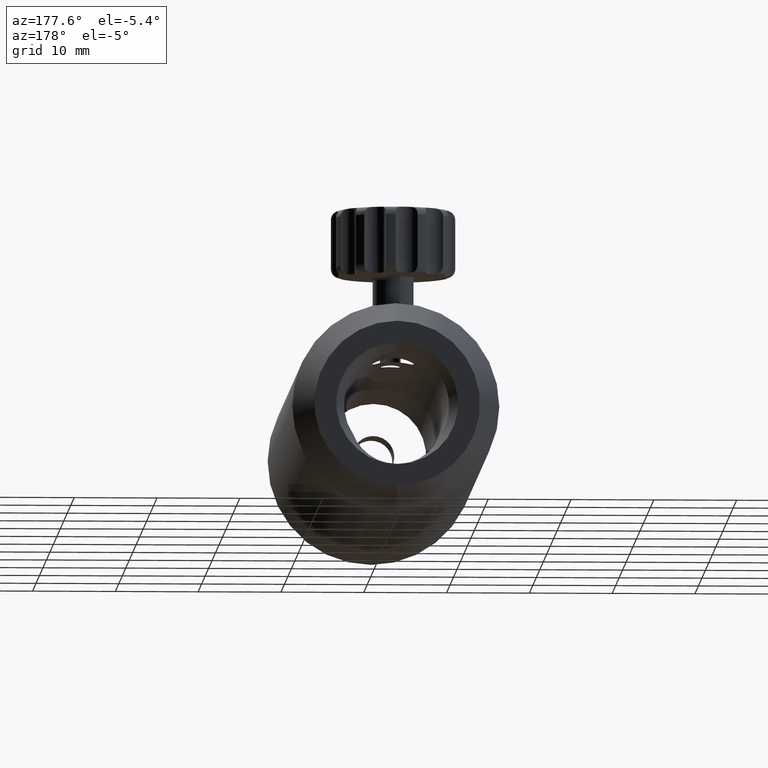
[diagram: clean part render]
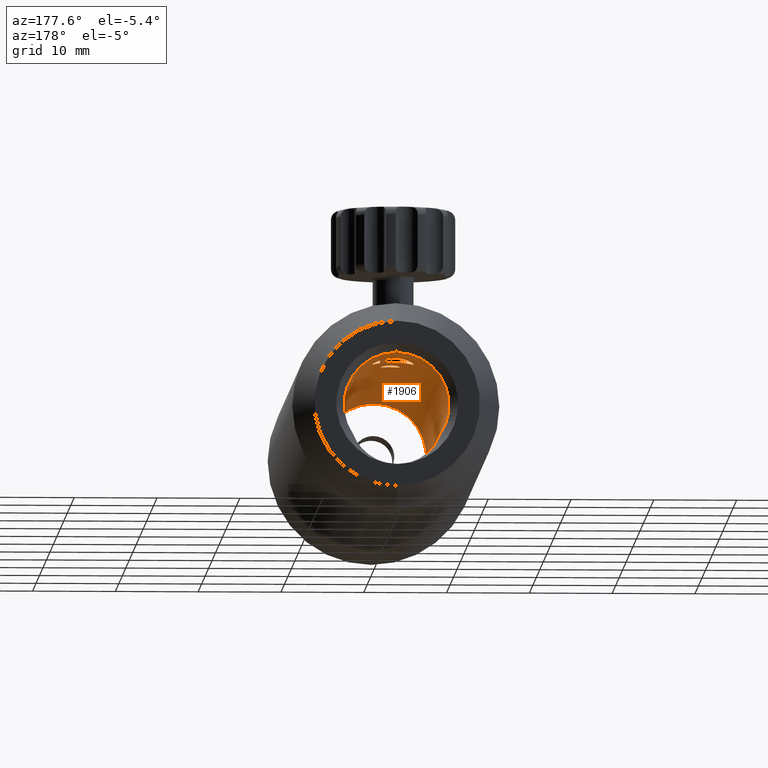
[diagram: same view with one face highlighted and labeled with its STEP entity id]
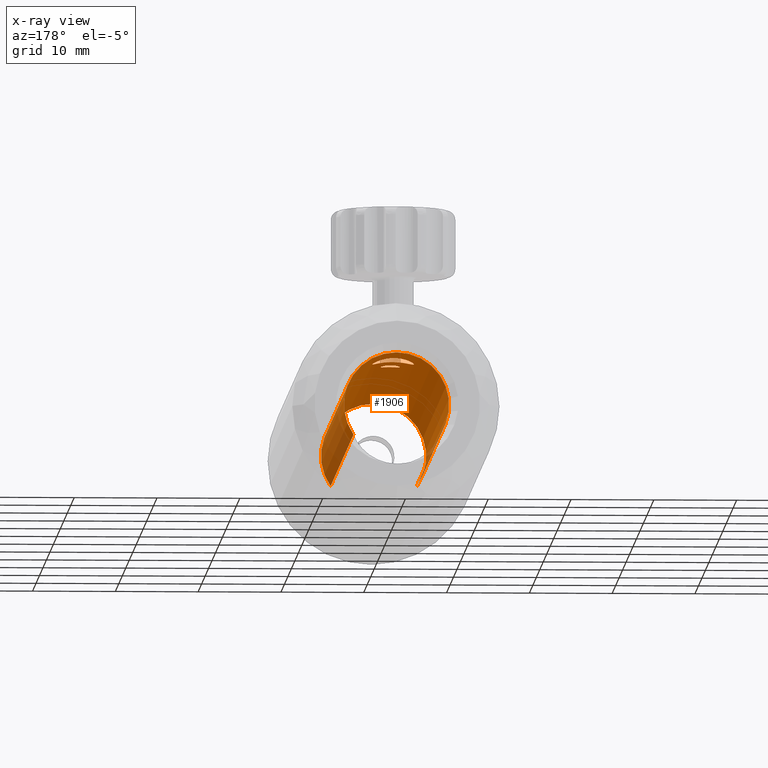
[diagram: x-ray of the same camera — body ghosted, the highlighted face saturated]
A machine part, auxiliary view. The second image highlights one B-rep face of the part: STEP entity #1906.
The next image is the same camera in x-ray: the body ghosted, the highlighted face saturated — about 19% of this face is hidden behind the body in this view.
In plain terms, the highlighted cylindrical surface (partial cylindrical patch) has radius 6.35 mm, axis along (0, -1, -0).
Its self-contained STEP definition (entity closure, byte-faithful):
#41 = CARTESIAN_POINT ( 'NONE',  ( -5.198049867510712300, -1.728264329007514100, -3.647297297297291700 ) ) ;
#81 = CARTESIAN_POINT ( 'NONE',  ( 0.1510113831027402900, 45.32182328895520800, 6.349984132182564500 ) ) ;
#97 = CARTESIAN_POINT ( 'NONE',  ( -1.149999908789935100, 46.47127765014592900, 6.244998015194491700 ) ) ;
#112 = CARTESIAN_POINT ( 'NONE',  ( -2.165739435425883700, 55.73107861359333300, 5.970029687664776900 ) ) ;
#125 = DIRECTION ( 'NONE',  ( 1.502285461903961200E-018, -1.000000000000000000, -4.971860657915503100E-018 ) ) ;
#127 = CARTESIAN_POINT ( 'NONE',  ( 2.370129959970264500, 55.28364904728293500, 5.891481081059257700 ) ) ;
#193 = EDGE_CURVE ( 'NONE', #2875, #2890, #1790, .T. ) ;
#200 = CARTESIAN_POINT ( 'NONE',  ( -0.6572119504573507000, 52.05407384349165800, 6.317965192850091500 ) ) ;
#209 = FACE_OUTER_BOUND ( 'NONE', #1007, .T. ) ;
#213 = CARTESIAN_POINT ( 'NONE',  ( -1.654242992986352000, 52.59021364012831900, 6.131916109646367000 ) ) ;
#227 = DIRECTION ( 'NONE',  ( -9.992007221626422700E-016, 0.0000000000000000000, -1.000000000000000000 ) ) ;
#284 = CARTESIAN_POINT ( 'NONE',  ( -2.499997752677083400, 54.47508777623104200, 5.837166370475449300 ) ) ;
#325 = CARTESIAN_POINT ( 'NONE',  ( 1.004358416760792600, 45.89167152456907700, 6.270342740579433600 ) ) ;
#344 = EDGE_CURVE ( 'NONE', #3453, #3025, #3136, .T. ) ;
#364 = CARTESIAN_POINT ( 'NONE',  ( -0.3005370403878017100, 45.35148986445078400, 6.344423632383190200 ) ) ;
#373 = CIRCLE ( 'NONE', #3633, 6.349999999999991700 ) ;
#382 = CARTESIAN_POINT ( 'NONE',  ( 0.3025598155492886200, 45.35219018268771400, 6.344302884267999200 ) ) ;
#385 = CARTESIAN_POINT ( 'NONE',  ( 2.499999999999946700, 54.47173567099245900, 5.837165407969830100 ) ) ;
#425 = CARTESIAN_POINT ( 'NONE',  ( 0.6547900516583230500, 56.89009666806531100, 6.318233128599670700 ) ) ;
#454 = CARTESIAN_POINT ( 'NONE',  ( -2.244044347562149400, 55.58559831054443400, 5.940647282432816900 ) ) ;
#499 = CARTESIAN_POINT ( 'NONE',  ( -0.1674585183177325600, 51.97191312956984900, 6.349930134451908800 ) ) ;
#505 = CARTESIAN_POINT ( 'NONE',  ( -0.1528058789328060300, 47.62161977588503000, 6.349979011128140400 ) ) ;
#507 = CARTESIAN_POINT ( 'NONE',  ( 0.3269052817027869900, 51.97138503305340900, 6.350138046366005500 ) ) ;
#587 = CARTESIAN_POINT ( 'NONE',  ( 0.0000000000000000000, 64.47173567099247300, 0.0000000000000000000 ) ) ;
#656 = CARTESIAN_POINT ( 'NONE',  ( 1.149999999999984400, 46.31944945576085400, 6.244997998398420500 ) ) ;
#675 = CARTESIAN_POINT ( 'NONE',  ( -0.7059460571119214900, 45.55138902037094800, 6.311559679995632200 ) ) ;
#693 = CARTESIAN_POINT ( 'NONE',  ( 2.483446565210908100, 54.80248579836594300, 5.844331902840751900 ) ) ;
#735 = CARTESIAN_POINT ( 'NONE',  ( -0.3294400814280854000, 56.95537486863538100, 6.343506928962349400 ) ) ;
#749 = CARTESIAN_POINT ( 'NONE',  ( -0.8084815697118772300, 56.84316132502763000, 6.300211952570832900 ) ) ;
#788 = CARTESIAN_POINT ( 'NONE',  ( -2.369392307714980100, 55.28561840563941800, 5.891774372822089500 ) ) ;
#791 = AXIS2_PLACEMENT_3D ( 'NONE', #3310, #1919, #2207 ) ;
#793 = CARTESIAN_POINT ( 'NONE',  ( -2.371452656498692400, 53.66365428116020600, 5.890946929205545000 ) ) ;
#804 = CARTESIAN_POINT ( 'NONE',  ( 2.242884453182267400, 53.35524090051961800, 5.941095508936077100 ) ) ;
#834 = CARTESIAN_POINT ( 'NONE',  ( 5.198049867510490300, 31.37173567099244700, -3.647297297297430200 ) ) ;
#844 = CARTESIAN_POINT ( 'NONE',  ( 0.1510564449334315900, 47.62185090076948800, 6.350020868378971200 ) ) ;
#905 = CARTESIAN_POINT ( 'NONE',  ( 5.198049867510490300, 64.47173567099247300, -3.647297297297430200 ) ) ;
#933 = CARTESIAN_POINT ( 'NONE',  ( 1.149999999999984400, 46.47173567099245200, 6.244997998398421400 ) ) ;
#971 = CARTESIAN_POINT ( 'NONE',  ( -0.9199979220715451800, 45.76533520649222500, 6.283927852313589700 ) ) ;
#986 = VECTOR ( 'NONE', #1108, 1000.000000000000000 ) ;
#1007 = EDGE_LOOP ( 'NONE', ( #1756, #2010, #2718, #2220, #1827 ) ) ;
#1038 = CARTESIAN_POINT ( 'NONE',  ( -1.113556473459903500, 56.71612736176201300, 6.253503424185175200 ) ) ;
#1065 = CARTESIAN_POINT ( 'NONE',  ( -1.987609498650947800, 52.94673890292909800, 6.031665373164329900 ) ) ;
#1078 = CARTESIAN_POINT ( 'NONE',  ( -1.261026477226992800, 52.30702362562430400, 6.225049564060847200 ) ) ;
#1084 = AXIS2_PLACEMENT_3D ( 'NONE', #587, #3285, #1625 ) ;
#1093 = CARTESIAN_POINT ( 'NONE',  ( 0.0000000000000000000, -1.728264329007514100, 0.0000000000000000000 ) ) ;
#1098 = CARTESIAN_POINT ( 'NONE',  ( 1.149999999999984400, 46.47173567099245200, 6.244997998398421400 ) ) ;
#1100 = B_SPLINE_CURVE_WITH_KNOTS ( 'NONE', 3,
 ( #933, #656, #3135, #325, #1223, #3440, #1780, #382, #81, #2051, #364, #2334, #675, #971, #1238, #1516, #3166, #97 ),
 .UNSPECIFIED., .F., .F.,
 ( 4, 2, 2, 2, 2, 2, 2, 2, 4 ),
 ( 0.0000000000000000000, 0.0004502999185177035000, 0.0009005998370354070000, 0.001350899755553110800, 0.001801199674070814400, 0.002251499592588517900, 0.002701799511106221500, 0.003152099429623924800, 0.003602399348141628000 ),
 .UNSPECIFIED. ) ;
#1108 = DIRECTION ( 'NONE',  ( -1.502285461903961200E-018, 1.000000000000000000, 4.971860657915503100E-018 ) ) ;
#1155 = CARTESIAN_POINT ( 'NONE',  ( -5.198049867510712300, 64.47173567099247300, -3.647297297297291700 ) ) ;
#1218 = EDGE_CURVE ( 'NONE', #2938, #3025, #3303, .T. ) ;
#1223 = CARTESIAN_POINT ( 'NONE',  ( 0.9189334159104122200, 45.76429904790309400, 6.284063441641041700 ) ) ;
#1233 = FACE_BOUND ( 'NONE', #3547, .T. ) ;
#1238 = CARTESIAN_POINT ( 'NONE',  ( -1.004466206490030000, 45.89189900700791500, 6.270324796236828000 ) ) ;
#1250 = EDGE_LOOP ( 'NONE', ( #3316, #1384 ) ) ;
#1254 = CARTESIAN_POINT ( 'NONE',  ( 0.8140545381631920700, 56.84107788072399400, 6.299434701280211400 ) ) ;
#1291 = EDGE_CURVE ( 'NONE', #1517, #1884, #2104, .T. ) ;
#1333 = CARTESIAN_POINT ( 'NONE',  ( 1.651760224387802200, 52.58812832776277400, 6.132573316429510900 ) ) ;
#1344 = CARTESIAN_POINT ( 'NONE',  ( -1.529473421994204100, 52.48757915825392200, 6.164587650662047800 ) ) ;
#1373 = CARTESIAN_POINT ( 'NONE',  ( 0.7067191327235603500, 47.39120574181384200, 6.311453055442164000 ) ) ;
#1384 = ORIENTED_EDGE ( 'NONE', *, *, #1291, .F. ) ;
#1388 = ORIENTED_EDGE ( 'NONE', *, *, #193, .T. ) ;
#1394 = CARTESIAN_POINT ( 'NONE',  ( 0.9184271179517848900, 47.17980965914947700, 6.284137429482148800 ) ) ;
#1455 = CARTESIAN_POINT ( 'NONE',  ( -1.149999908789935100, 46.47127765014592900, 6.244998015194491700 ) ) ;
#1502 = CIRCLE ( 'NONE', #1084, 6.349999999999991700 ) ;
#1516 = CARTESIAN_POINT ( 'NONE',  ( -1.119871043786738500, 46.16998782564940000, 6.250745096032224200 ) ) ;
#1517 = VERTEX_POINT ( 'NONE', #1455 ) ;
#1528 = CARTESIAN_POINT ( 'NONE',  ( -1.256784600331917200, 56.63893691332138000, 6.225916663104407600 ) ) ;
#1541 = CARTESIAN_POINT ( 'NONE',  ( 1.986308574825984600, 55.99851352368347800, 6.032102730984076900 ) ) ;
#1566 = CARTESIAN_POINT ( 'NONE',  ( -1.653242219314702500, 56.35401917356335800, 6.132168636888772000 ) ) ;
#1569 = AXIS2_PLACEMENT_3D ( 'NONE', #2763, #1909, #227 ) ;
#1602 = CARTESIAN_POINT ( 'NONE',  ( 2.499999999999946700, 54.47173567099245900, 5.837165407969830100 ) ) ;
#1607 = CARTESIAN_POINT ( 'NONE',  ( -2.499997752677083400, 54.47508777623104200, 5.837166370475449300 ) ) ;
#1625 = DIRECTION ( 'NONE',  ( -9.992007221626422700E-016, 0.0000000000000000000, -1.000000000000000000 ) ) ;
#1638 = CARTESIAN_POINT ( 'NONE',  ( -2.483961750665627700, 54.14424684330835200, 5.844113701012537900 ) ) ;
#1654 = CARTESIAN_POINT ( 'NONE',  ( 1.149999999999984400, 46.47173567099245200, 6.244997998398421400 ) ) ;
#1659 = EDGE_CURVE ( 'NONE', #2890, #2875, #2480, .T. ) ;
#1673 = CARTESIAN_POINT ( 'NONE',  ( 1.004211816076737700, 47.05181489765948300, 6.270364000829802700 ) ) ;
#1680 = CARTESIAN_POINT ( 'NONE',  ( -1.150059753738826400, 46.62153650034486700, 6.244986994905036500 ) ) ;
#1686 = CARTESIAN_POINT ( 'NONE',  ( -5.198049867510712300, 31.37173567099244700, -3.647297297297291700 ) ) ;
#1756 = ORIENTED_EDGE ( 'NONE', *, *, #2759, .T. ) ;
#1780 = CARTESIAN_POINT ( 'NONE',  ( 0.5791741834360694100, 45.46700595230694100, 6.325051683153080100 ) ) ;
#1790 = B_SPLINE_CURVE_WITH_KNOTS ( 'NONE', 3,
 ( #2732, #2719, #1638, #2440, #793, #3284, #2992, #1065, #2979, #213, #1344, #1078, #3302, #2464, #200, #2453, #499, #507, #2998, #2754, #1902, #3570, #1333, #1865, #3579, #3024, #804, #2178, #3262, #1602 ),
 .UNSPECIFIED., .F., .F.,
 ( 4, 2, 2, 2, 2, 2, 2, 2, 2, 2, 2, 2, 2, 2, 4 ),
 ( 0.007893180680537455900, 0.008386504473071048800, 0.008879828265604640000, 0.009373152058138233000, 0.009866475850671824200, 0.01035979964320541700, 0.01085312343573901000, 0.01134644722827260100, 0.01183977102080619400, 0.01282641860587337800, 0.01331974239840697100, 0.01381306619094056400, 0.01430638998347415500, 0.01479971377600774800, 0.01578636136107491500 ),
 .UNSPECIFIED. ) ;
#1804 = CARTESIAN_POINT ( 'NONE',  ( -1.984618731513558600, 56.00067662464731200, 6.032658639794162200 ) ) ;
#1813 = CARTESIAN_POINT ( 'NONE',  ( 1.264361089591121300, 56.65285011705120900, 6.230260060568698900 ) ) ;
#1827 = ORIENTED_EDGE ( 'NONE', *, *, #3266, .F. ) ;
#1865 = CARTESIAN_POINT ( 'NONE',  ( 1.881222169726200800, 52.81725943650946700, 6.066116588756230500 ) ) ;
#1884 = VERTEX_POINT ( 'NONE', #1654 ) ;
#1897 = CARTESIAN_POINT ( 'NONE',  ( -2.483275062656582000, 54.80464652090318400, 5.844408703338613600 ) ) ;
#1902 = CARTESIAN_POINT ( 'NONE',  ( 1.256596103985782300, 52.30437491040130000, 6.225967073754529400 ) ) ;
#1906 = ADVANCED_FACE ( 'NONE', ( #2523, #1233, #209 ), #3226, .F. ) ;
#1909 = DIRECTION ( 'NONE',  ( 1.502285461903961200E-018, -1.000000000000000000, -4.971860657915503100E-018 ) ) ;
#1919 = DIRECTION ( 'NONE',  ( 1.502285461903961200E-018, -1.000000000000000000, -4.971860657915503100E-018 ) ) ;
#1920 = CARTESIAN_POINT ( 'NONE',  ( -0.5811329321484782800, 47.47552276683281700, 6.324896745840590900 ) ) ;
#2010 = ORIENTED_EDGE ( 'NONE', *, *, #2691, .T. ) ;
#2051 = CARTESIAN_POINT ( 'NONE',  ( -0.1496739444161646600, 45.32164844188675100, 6.350015797394512200 ) ) ;
#2083 = DIRECTION ( 'NONE',  ( -9.992007221626422700E-016, 0.0000000000000000000, -1.000000000000000000 ) ) ;
#2104 = B_SPLINE_CURVE_WITH_KNOTS ( 'NONE', 3,
 ( #2776, #1680, #2768, #3590, #3311, #2477, #1920, #2185, #505, #844, #2459, #3049, #1373, #1394, #1673, #3623, #2225, #1098 ),
 .UNSPECIFIED., .F., .F.,
 ( 4, 2, 2, 2, 2, 2, 2, 2, 4 ),
 ( 0.003602399348141628000, 0.004052699266659333400, 0.004502999185177038400, 0.004953299103694743300, 0.005403599022212448300, 0.005853898940730153200, 0.006304198859247858200, 0.006754498777765563200, 0.007204798696283268100 ),
 .UNSPECIFIED. ) ;
#2116 = CARTESIAN_POINT ( 'NONE',  ( -1.882165318667554900, 56.12511243778827500, 6.065818637263395100 ) ) ;
#2137 = LINE ( 'NONE', #834, #2612 ) ;
#2162 = CARTESIAN_POINT ( 'NONE',  ( -2.499777366650979700, 54.63945152103099900, 5.837260759522291800 ) ) ;
#2178 = CARTESIAN_POINT ( 'NONE',  ( 2.433414811681879000, 53.81078383797714100, 5.866820128553010600 ) ) ;
#2185 = CARTESIAN_POINT ( 'NONE',  ( -0.3022794824821744000, 47.59152633583718700, 6.344340899166966500 ) ) ;
#2195 = CARTESIAN_POINT ( 'NONE',  ( 5.198049867510490300, -1.728264329007541900, -3.647297297297430200 ) ) ;
#2207 = DIRECTION ( 'NONE',  ( -9.992007221626422700E-016, 0.0000000000000000000, -1.000000000000000000 ) ) ;
#2220 = ORIENTED_EDGE ( 'NONE', *, *, #1218, .F. ) ;
#2225 = CARTESIAN_POINT ( 'NONE',  ( 1.149999999999984600, 46.62402188622405700, 6.244997998398421400 ) ) ;
#2334 = CARTESIAN_POINT ( 'NONE',  ( -0.5793916107516863300, 45.46695781439438400, 6.325056450434094500 ) ) ;
#2345 = CARTESIAN_POINT ( 'NONE',  ( 1.882212791084718000, 56.12499848162278200, 6.065794436200895300 ) ) ;
#2376 = CARTESIAN_POINT ( 'NONE',  ( 2.167444471297904400, 55.72818178194795300, 5.969411158180757400 ) ) ;
#2388 = CARTESIAN_POINT ( 'NONE',  ( 0.3313015468426845900, 56.95517264602797500, 6.343426452962526200 ) ) ;
#2426 = CARTESIAN_POINT ( 'NONE',  ( -2.417570060403433800, 55.12964119144449200, 5.871892636238599500 ) ) ;
#2440 = CARTESIAN_POINT ( 'NONE',  ( -2.419233050019943900, 53.82010206173111300, 5.871204508346093800 ) ) ;
#2449 = ORIENTED_EDGE ( 'NONE', *, *, #1659, .T. ) ;
#2453 = CARTESIAN_POINT ( 'NONE',  ( -0.3350173562672737500, 51.98883824440025600, 6.343214886545224500 ) ) ;
#2459 = CARTESIAN_POINT ( 'NONE',  ( 0.3009579352662133400, 47.59181207493569600, 6.344395102386847000 ) ) ;
#2464 = CARTESIAN_POINT ( 'NONE',  ( -0.8132572461816591800, 52.10204218329212000, 6.299562945850819800 ) ) ;
#2477 = CARTESIAN_POINT ( 'NONE',  ( -0.7080124032558784400, 47.39026348122467900, 6.311309099113021400 ) ) ;
#2480 = B_SPLINE_CURVE_WITH_KNOTS ( 'NONE', 3,
 ( #385, #2904, #693, #3169, #127, #3464, #2376, #1541, #2345, #2687, #1813, #1254, #425, #2388, #3184, #2947, #735, #3228, #749, #1038, #1528, #3476, #1566, #2116, #1804, #112, #454, #788, #2426, #1897, #2162, #1607 ),
 .UNSPECIFIED., .F., .F.,
 ( 4, 2, 2, 2, 2, 2, 2, 2, 2, 2, 2, 2, 2, 2, 2, 4 ),
 ( 0.0000000000000000000, 0.0004933237925335855700, 0.0009866475850671711400, 0.001479971377600756700, 0.001973295170134342300, 0.002959942755201528600, 0.003453266547735121600, 0.003946590340268714900, 0.004439914132802307900, 0.004933237925335900000, 0.005426561717869492900, 0.005919885510403085000, 0.006413209302936677900, 0.006906533095470270000, 0.007399856888003862900, 0.007893180680537455900 ),
 .UNSPECIFIED. ) ;
#2485 = DIRECTION ( 'NONE',  ( 1.502285461903961200E-018, -1.000000000000000000, -4.971860657915503100E-018 ) ) ;
#2523 = FACE_BOUND ( 'NONE', #1250, .T. ) ;
#2536 = CARTESIAN_POINT ( 'NONE',  ( 2.499999999999946700, 54.47173567099245900, 5.837165407969830100 ) ) ;
#2607 = EDGE_CURVE ( 'NONE', #1884, #1517, #1100, .T. ) ;
#2612 = VECTOR ( 'NONE', #2485, 1000.000000000000000 ) ;
#2687 = CARTESIAN_POINT ( 'NONE',  ( 1.540228304383115100, 56.46715753569228700, 6.164944874291403000 ) ) ;
#2691 = EDGE_CURVE ( 'NONE', #2851, #3453, #373, .T. ) ;
#2718 = ORIENTED_EDGE ( 'NONE', *, *, #344, .T. ) ;
#2719 = CARTESIAN_POINT ( 'NONE',  ( -2.500218138703186100, 54.31072403143110000, 5.837071981428608500 ) ) ;
#2732 = CARTESIAN_POINT ( 'NONE',  ( -2.499997752677083400, 54.47508777623104200, 5.837166370475449300 ) ) ;
#2754 = CARTESIAN_POINT ( 'NONE',  ( 1.110814755856100300, 52.22613332870354700, 6.253945325898986800 ) ) ;
#2759 = EDGE_CURVE ( 'NONE', #3051, #2851, #2137, .T. ) ;
#2763 = CARTESIAN_POINT ( 'NONE',  ( 0.0000000000000000000, 64.47173567099247300, 0.0000000000000000000 ) ) ;
#2768 = CARTESIAN_POINT ( 'NONE',  ( -1.119864790154556200, 46.77316509068033700, 6.250742618844149100 ) ) ;
#2776 = CARTESIAN_POINT ( 'NONE',  ( -1.149999908789935100, 46.47127765014592900, 6.244998015194491700 ) ) ;
#2851 = VERTEX_POINT ( 'NONE', #2195 ) ;
#2875 = VERTEX_POINT ( 'NONE', #284 ) ;
#2890 = VERTEX_POINT ( 'NONE', #2536 ) ;
#2904 = CARTESIAN_POINT ( 'NONE',  ( 2.499999999999948000, 54.63869492255159300, 5.837165407969830100 ) ) ;
#2938 = VERTEX_POINT ( 'NONE', #3082 ) ;
#2947 = CARTESIAN_POINT ( 'NONE',  ( -0.1620294399418761900, 56.97192901851017400, 6.350076121024796000 ) ) ;
#2979 = CARTESIAN_POINT ( 'NONE',  ( -1.884856367790280800, 52.82129285002831400, 6.065000538201581500 ) ) ;
#2992 = CARTESIAN_POINT ( 'NONE',  ( -2.167685011710939000, 53.21581037395646500, 5.969314900636487000 ) ) ;
#2998 = CARTESIAN_POINT ( 'NONE',  ( 0.6587173392416230100, 52.03808642077856900, 6.323097161330691700 ) ) ;
#3024 = CARTESIAN_POINT ( 'NONE',  ( 2.165798744583618900, 53.21259179758580200, 5.970000226077982800 ) ) ;
#3025 = VERTEX_POINT ( 'NONE', #1155 ) ;
#3049 = CARTESIAN_POINT ( 'NONE',  ( 0.5790344072765119000, 47.47665655576899700, 6.325080556734423700 ) ) ;
#3051 = VERTEX_POINT ( 'NONE', #905 ) ;
#3082 = CARTESIAN_POINT ( 'NONE',  ( 6.852540497365953800E-015, 64.47173567099247300, 6.350000000000000500 ) ) ;
#3135 = CARTESIAN_POINT ( 'NONE',  ( 1.119906521228734000, 46.17004107874151200, 6.250739420049825400 ) ) ;
#3136 = LINE ( 'NONE', #1686, #986 ) ;
#3166 = CARTESIAN_POINT ( 'NONE',  ( -1.149940063841044400, 46.32101879994699100, 6.245009035483946000 ) ) ;
#3169 = CARTESIAN_POINT ( 'NONE',  ( 2.418945068146317800, 55.12412148192496600, 5.871322422598734800 ) ) ;
#3184 = CARTESIAN_POINT ( 'NONE',  ( 0.1679419304376805200, 56.97153882771912200, 6.349922502693877900 ) ) ;
#3226 = CYLINDRICAL_SURFACE ( 'NONE', #791, 6.349999999999991700 ) ;
#3228 = CARTESIAN_POINT ( 'NONE',  ( -0.6516518198783521900, 56.89089757896163500, 6.318541036560096000 ) ) ;
#3262 = CARTESIAN_POINT ( 'NONE',  ( 2.499999999999946300, 54.13781716787422500, 5.837165407969831000 ) ) ;
#3266 = EDGE_CURVE ( 'NONE', #3051, #2938, #1502, .T. ) ;
#3284 = CARTESIAN_POINT ( 'NONE',  ( -2.245868178369128600, 53.36139366962674300, 5.939959557953225800 ) ) ;
#3285 = DIRECTION ( 'NONE',  ( 1.502285461903961200E-018, -1.000000000000000000, -4.971860657915503100E-018 ) ) ;
#3302 = CARTESIAN_POINT ( 'NONE',  ( -1.115524517232141500, 52.22842570008555200, 6.253118078899326800 ) ) ;
#3303 = CIRCLE ( 'NONE', #1569, 6.349999999999991700 ) ;
#3310 = CARTESIAN_POINT ( 'NONE',  ( 0.0000000000000000000, -19.86467094839286000, 0.0000000000000000000 ) ) ;
#3311 = CARTESIAN_POINT ( 'NONE',  ( -0.9198306915706318000, 47.17805457926184700, 6.283933131929051000 ) ) ;
#3316 = ORIENTED_EDGE ( 'NONE', *, *, #2607, .F. ) ;
#3440 = CARTESIAN_POINT ( 'NONE',  ( 0.7072242998304121300, 45.55263883806664200, 6.311396497699664800 ) ) ;
#3453 = VERTEX_POINT ( 'NONE', #41 ) ;
#3464 = CARTESIAN_POINT ( 'NONE',  ( 2.244230462233689500, 55.58535544009249900, 5.940580357844688700 ) ) ;
#3476 = CARTESIAN_POINT ( 'NONE',  ( -1.526089899978895000, 56.45852161154215300, 6.165435543798591500 ) ) ;
#3547 = EDGE_LOOP ( 'NONE', ( #2449, #1388 ) ) ;
#3570 = CARTESIAN_POINT ( 'NONE',  ( 1.526984130719089000, 52.48558212717100000, 6.165226616804922300 ) ) ;
#3579 = CARTESIAN_POINT ( 'NONE',  ( 1.985621716729092600, 52.94417752348012800, 6.032320722530006000 ) ) ;
#3590 = CARTESIAN_POINT ( 'NONE',  ( -1.005221241948752700, 47.05008426657843800, 6.270200211316821800 ) ) ;
#3623 = CARTESIAN_POINT ( 'NONE',  ( 1.119291772196783000, 46.77524713609939500, 6.250847302817678800 ) ) ;
#3633 = AXIS2_PLACEMENT_3D ( 'NONE', #1093, #125, #2083 ) ;